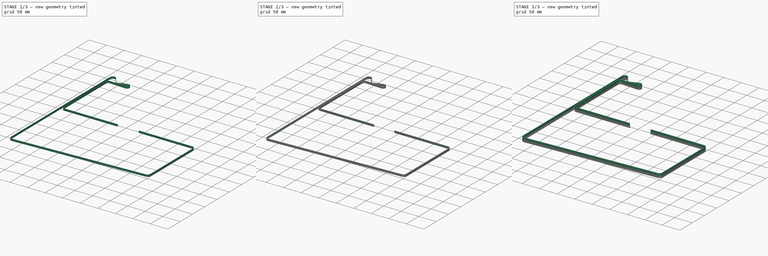
[diagram: build sequence overview — one tinted view per stage of 3, left to right]
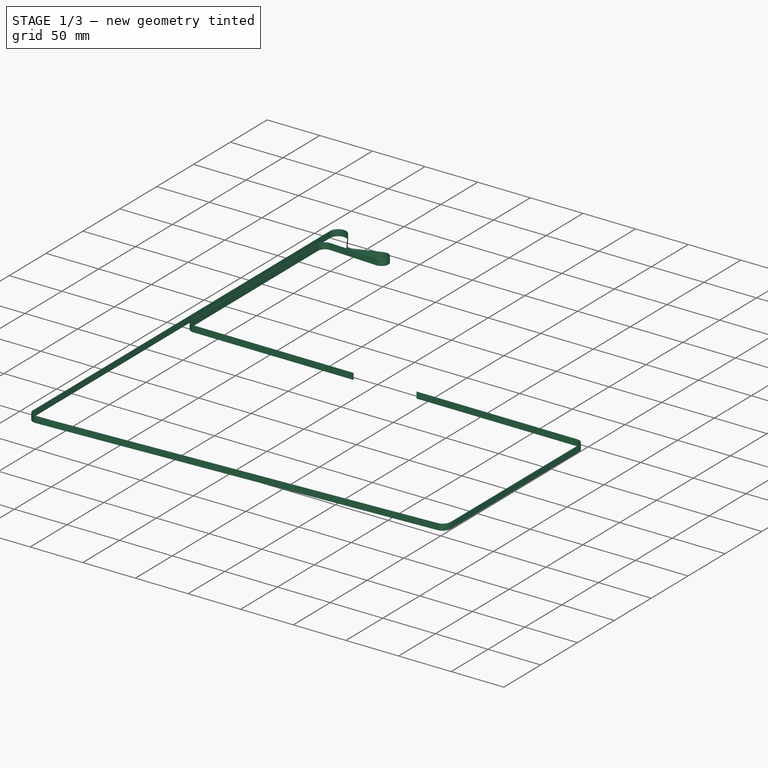
[diagram: stage 1 of 3 — iso view after this stage's code; geometry added in this stage tinted green]
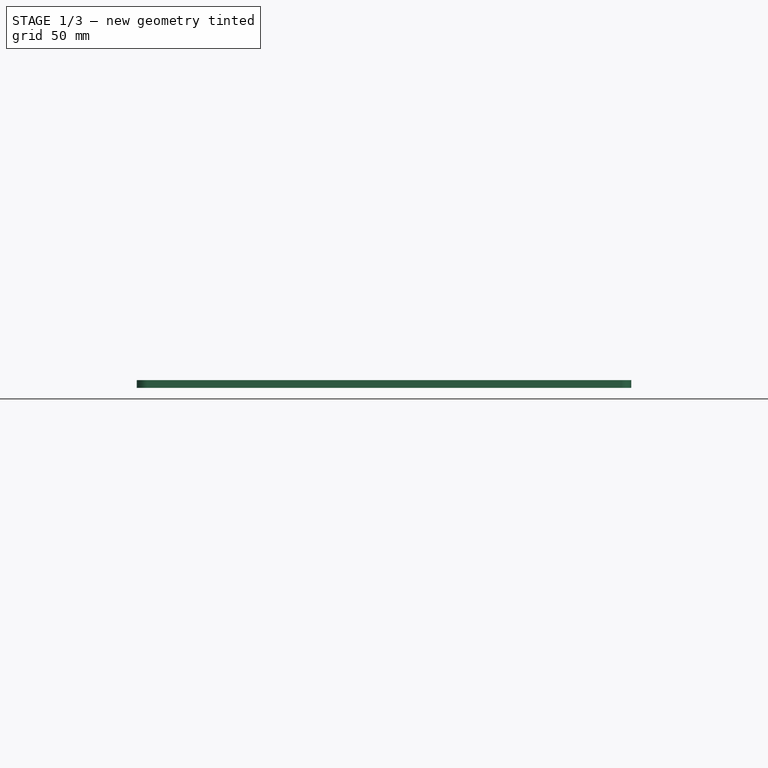
[diagram: stage 1 of 3 — front view after this stage's code; geometry added in this stage tinted green]
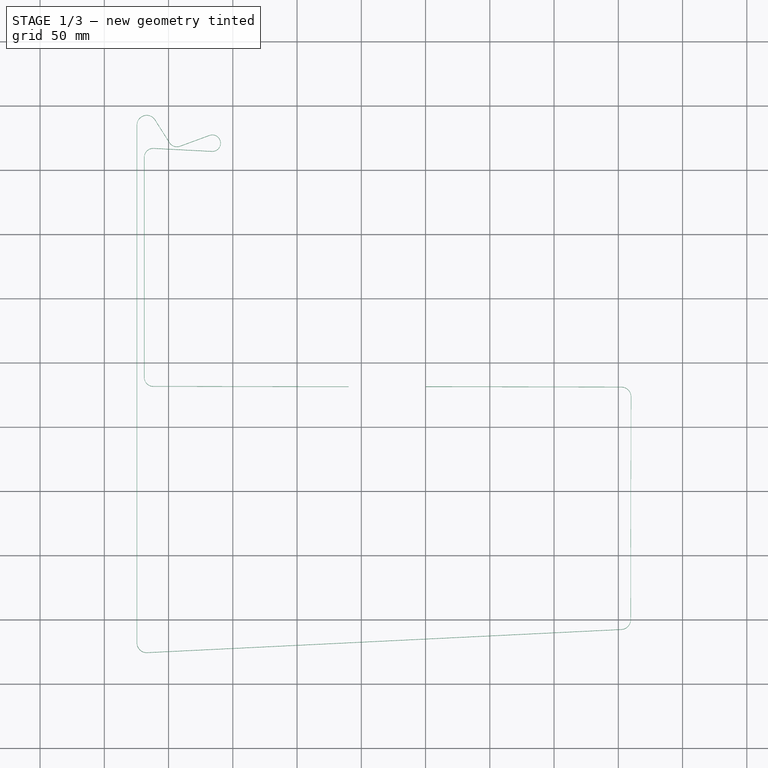
[diagram: stage 1 of 3 — top view after this stage's code; geometry added in this stage tinted green]
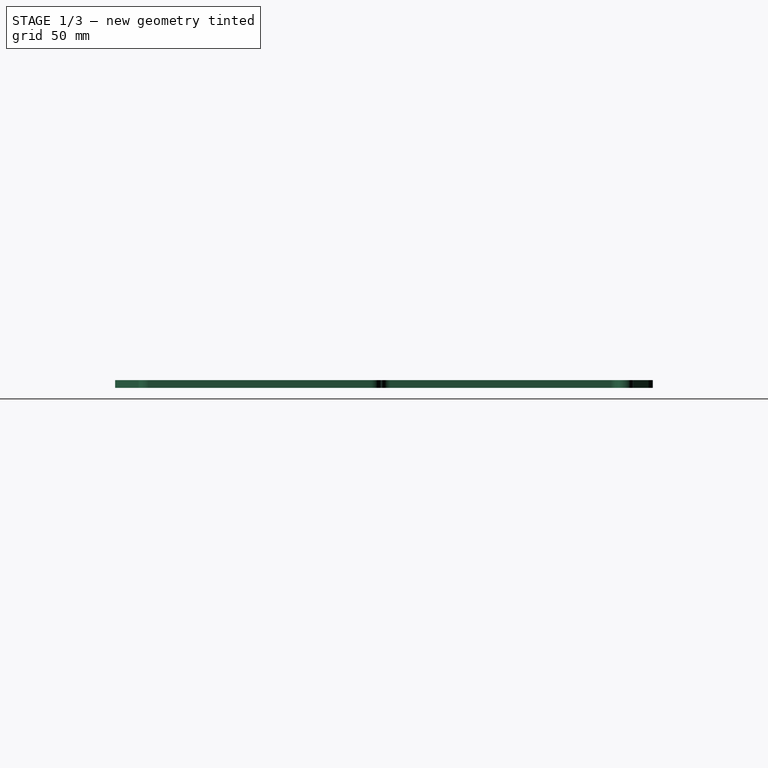
[diagram: stage 1 of 3 — right view after this stage's code; geometry added in this stage tinted green]
FCSTD DOCUMENT  (FreeCAD 0.16R4945 (Git))
Label: GT2-Belt_left
License: All rights reserved
LicenseURL: http://en.wikipedia.org/wiki/All_rights_reserved
objects: Part::Part2DObjectPython×17, Sketcher::SketchObject×5, App::DocumentObjectGroup×3, Part::FeaturePython×2, Part::Sweep×2, PartDesign::Pad×1, Part::Compound×1
note: 29 computed .brp shape members not serialized (recipe doc carries the construction recipe); baked Part::Feature solids carry a one-line shape summary decoded from their .brp

FEATURE [Part::FeaturePython] muxedAssembly  # WARN: FeaturePython — macro-defined, semantics opaque (R4)
  type = muxedAssembly
FEATURE [Part::Sweep] Sweep001
  Frenet = false
  Sections = -> [Sketch004]
  Solid = true
  Spine = -> Sketch [Edge1,Edge2,Edge3,Edge4,Edge5,Edge6,Edge7,Edge8,Edge9,Edge10,Edge11,Edge12,Edge13,Edge14,Edge15,Edge16,Edge17]
  Transition = 1
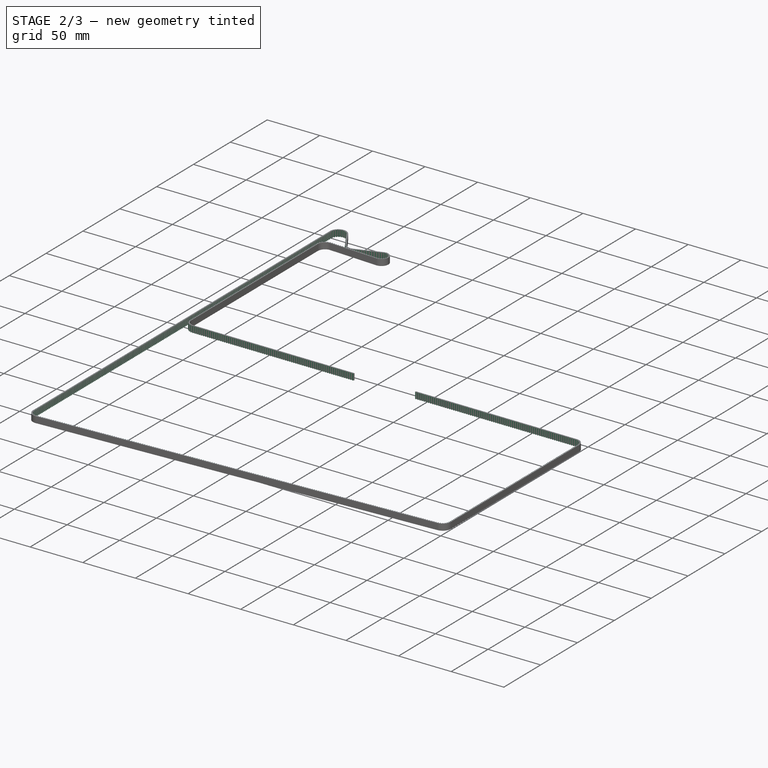
[diagram: stage 2 of 3 — iso view after this stage's code; geometry added in this stage tinted green]
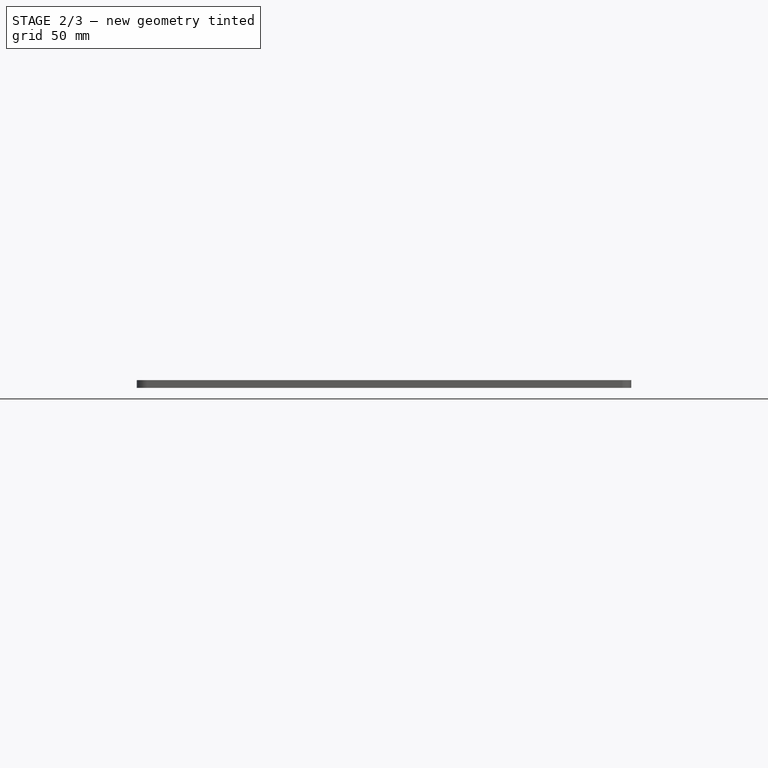
[diagram: stage 2 of 3 — front view after this stage's code; geometry added in this stage tinted green]
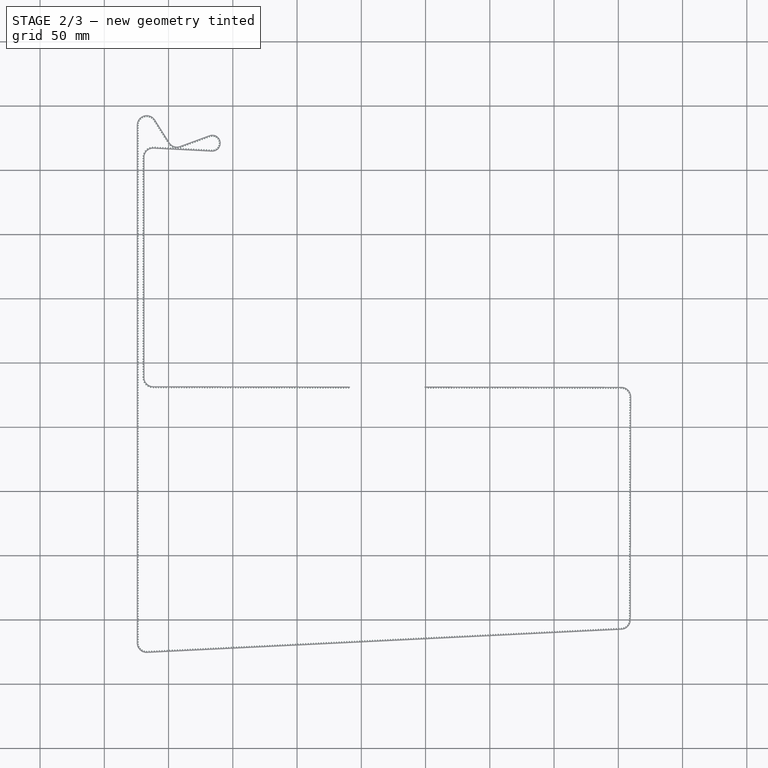
[diagram: stage 2 of 3 — top view after this stage's code; geometry added in this stage tinted green]
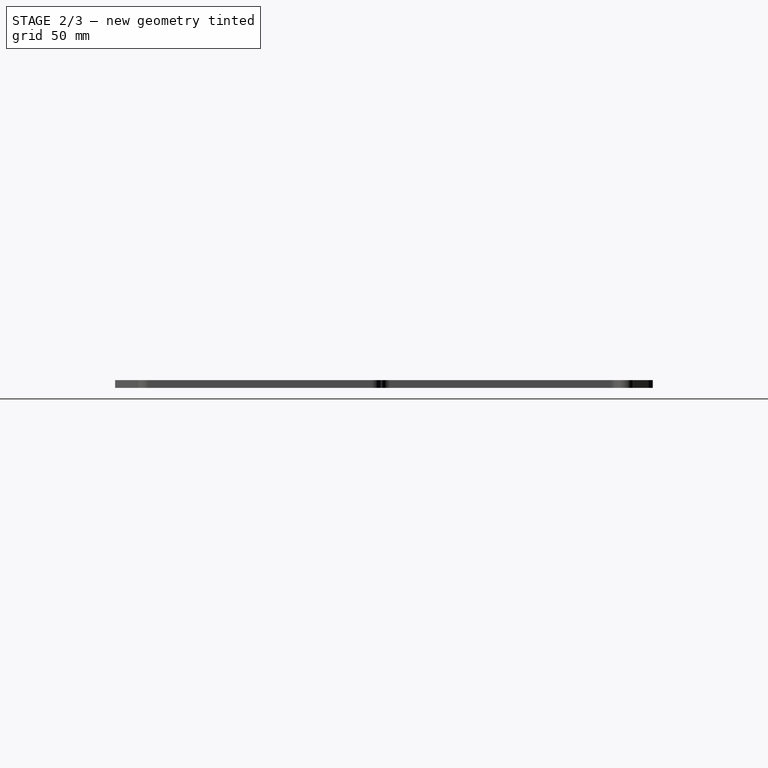
[diagram: stage 2 of 3 — right view after this stage's code; geometry added in this stage tinted green]
FEATURE [Sketcher::SketchObject] Sketch002  label="Timing Belt Master Sketch"
  Placement = pos=(0,0,0) rot=(1,0,0;1.5708rad)
  sketch-geometry (11):
    g0: Circle CenterX=0 CenterY=-0.449 CenterZ=0 NormalX=0 NormalY=0 NormalZ=1 Radius=0.555
    g1: LineSegment [constr] StartX=-1 StartY=-1.004 StartZ=0 EndX=1 EndY=-1.004 EndZ=0
    g2: LineSegment StartX=-1 StartY=-0.254 StartZ=0 EndX=1 EndY=-0.254 EndZ=0
    g3: LineSegment StartX=-1 StartY=0.376 StartZ=0 EndX=1 EndY=0.376 EndZ=0
    g4: LineSegment StartX=-1 StartY=0.376 StartZ=0 EndX=-1 EndY=-1.004 EndZ=0
    g5: LineSegment StartX=1 StartY=0.376 StartZ=0 EndX=1 EndY=-1.004 EndZ=0
    g6: LineSegment [constr] StartX=-1 StartY=-0.449 StartZ=0 EndX=1 EndY=-0.449 EndZ=0
    g7: Circle CenterX=-0.740175 CenterY=-0.404 CenterZ=0 NormalX=0 NormalY=0 NormalZ=1 Radius=0.15
    g8: Circle CenterX=0.740175 CenterY=-0.404 CenterZ=0 NormalX=0 NormalY=0 NormalZ=1 Radius=0.15
    g9: Circle CenterX=-0.4 CenterY=-0.254 CenterZ=0 NormalX=0 NormalY=0 NormalZ=1 Radius=1
    g10: Circle CenterX=0.4 CenterY=-0.254 CenterZ=0 NormalX=0 NormalY=0 NormalZ=1 Radius=1
  constraints (33):
    c: Radius(g0) = 0.555
    c: PointOnObject(g0,g-2)
    c: Horizontal(g1)
    c: Tangent(g1,g0)
    c: DistanceX(g1) = 2
    c: Symmetric(g1,g1,g-2)
    c: Horizontal(g2)
    c: DistanceY(g2,g1) = -0.75
    c: Horizontal(g3)
    c: Equal(g1,g2)
    c: Equal(g2,g3)
    c: Vertical(g4)
    c: Coincident(g4,g1)
    c: Coincident(g4,g3)
    c: PointOnObject(g2,g4)
    c: Coincident(g5,g1)
    c: Coincident(g5,g3)
    c: DistanceY(g3,g1) = -1.38
    c: PointOnObject(g0,g6)
    c: DistanceY(g-1,g2) = -0.254
    c: Horizontal(g6)
    c: PointOnObject(g6,g4)
    c: PointOnObject(g6,g5)
    c: Radius(g7) = 0.15
    c: Equal(g8,g7)
    c: Symmetric(g7,g8,g-2)
    c: Radius(g9) = 1
    c: Equal(g10,g9)
    c: Symmetric(g10,g9,g-2)
    c: DistanceX(g-1,g10) = 0.4
    c: DistanceY(g7,g3) = 0.78
    c: DistanceX(g7,g3) = -0.259825
    c: PointOnObject(g10,g2)
FEATURE [App::DocumentObjectGroup] Group  label="Master Sketch"
  Group = -> [Sketch002]
FEATURE [Part::Part2DObjectPython] Circle  # Draft 2D object (typed FeaturePython)
  FirstAngle = 0
  LastAngle = 0
  MakeFace = true
  Placement = pos=(0,-0.449,0) rot=(0,0,1;0rad)
  Radius = 0.555
FEATURE [Part::Part2DObjectPython] Line  # Draft 2D object (typed FeaturePython)
  ChamferSize = 0
  Closed = false
  End = (1,-0.254,0)
  FilletRadius = 0
  MakeFace = true
  Points = (2) [(-1,-0.254,0),(1,-0.254,0)]
  Start = (-1,-0.254,0)
FEATURE [Part::Part2DObjectPython] DWire  # Draft 2D object (typed FeaturePython)
  ChamferSize = 0
  Closed = false
  End = (1,-1.004,0)
  FilletRadius = 0
  MakeFace = true
  Points = (4) [(-1,-1.004,0),(-1,0.376,0),(1,0.376,0),(1,-1.004,0)]
  Start = (-1,-1.004,0)
FEATURE [Part::Part2DObjectPython] Circle001  # Draft 2D object (typed FeaturePython)
  FirstAngle = 0
  LastAngle = 0
  MakeFace = true
  Placement = pos=(-0.740175,-0.404,0) rot=(0,0,1;0rad)
  Radius = 0.15
FEATURE [Part::Part2DObjectPython] Circle002  # Draft 2D object (typed FeaturePython)
  FirstAngle = 0
  LastAngle = 0
  MakeFace = true
  Placement = pos=(0.740175,-0.404,0) rot=(0,0,1;0rad)
  Radius = 0.15
FEATURE [Part::Part2DObjectPython] Circle003  # Draft 2D object (typed FeaturePython)
  FirstAngle = 0
  LastAngle = 0
  MakeFace = true
  Placement = pos=(-0.4,-0.254,0) rot=(0,0,1;0rad)
  Radius = 1
FEATURE [Part::Part2DObjectPython] Circle004  # Draft 2D object (typed FeaturePython)
  FirstAngle = 0
  LastAngle = 0
  MakeFace = true
  Placement = pos=(0.4,-0.254,0) rot=(0,0,1;0rad)
  Radius = 1
FEATURE [App::DocumentObjectGroup] Group001  label="Draft from Sketch"
  Group = -> [Circle,Line,DWire,Circle001,Circle002,Circle003,Circle004]
FEATURE [Part::Part2DObjectPython] Arc  # Draft 2D object (typed FeaturePython)
  FirstAngle = 7.49472
  LastAngle = 90
  MakeFace = false
  Placement = pos=(-0.740175,-0.404,0) rot=(0,0,1;0rad)
  Radius = 0.15
FEATURE [Part::Part2DObjectPython] Arc001  # Draft 2D object (typed FeaturePython)
  FirstAngle = 90
  LastAngle = 172.505
  MakeFace = false
  Placement = pos=(0.740175,-0.404,0) rot=(0,0,1;0rad)
  Radius = 0.15
FEATURE [Part::Part2DObjectPython] Line001  # Draft 2D object (typed FeaturePython)
  ChamferSize = 0
  Closed = false
  End = (-1,-0.254,0)
  FilletRadius = 0
  MakeFace = false
  Points = (2) [(-0.740175,-0.254,0),(-1,-0.254,0)]
  Start = (-0.740175,-0.254,0)
FEATURE [Part::Part2DObjectPython] Line002  # Draft 2D object (typed FeaturePython)
  ChamferSize = 0
  Closed = false
  End = (1,-0.254,0)
  FilletRadius = 0
  MakeFace = false
  Points = (2) [(0.740175,-0.254,0),(1,-0.254,0)]
  Start = (0.740175,-0.254,0)
FEATURE [Part::Part2DObjectPython] Arc002  # Draft 2D object (typed FeaturePython)
  FirstAngle = -154.011
  LastAngle = -25.9892
  MakeFace = false
  Placement = pos=(0,-0.449,0) rot=(0,0,1;0rad)
  Radius = 0.555
FEATURE [Part::Part2DObjectPython] Arc003  # Draft 2D object (typed FeaturePython)
  FirstAngle = -25.9892
  LastAngle = -7.49472
  MakeFace = false
  Placement = pos=(-0.4,-0.254,0) rot=(0,0,1;0rad)
  Radius = 1
FEATURE [Part::Part2DObjectPython] Arc004  # Draft 2D object (typed FeaturePython)
  FirstAngle = -172.505
  LastAngle = -154.011
  MakeFace = false
  Placement = pos=(0.4,-0.254,0) rot=(0,0,1;0rad)
  Radius = 1
FEATURE [Part::Part2DObjectPython] Line003  # Draft 2D object (typed FeaturePython)
  ChamferSize = 0
  Closed = false
  End = (-1,0.376,0)
  FilletRadius = 0
  MakeFace = false
  Points = (2) [(-1,-0.254,0),(-1,0.376,0)]
  Start = (-1,-0.254,0)
FEATURE [Part::Part2DObjectPython] Line004  # Draft 2D object (typed FeaturePython)
  ChamferSize = 0
  Closed = false
  End = (1,0.376,0)
  FilletRadius = 0
  MakeFace = false
  Points = (2) [(1,-0.254,0),(1,0.376,0)]
  Start = (1,-0.254,0)
FEATURE [Part::Part2DObjectPython] Line005  # Draft 2D object (typed FeaturePython)
  ChamferSize = 0
  Closed = false
  End = (1,0.376,0)
  FilletRadius = 0
  MakeFace = false
  Points = (2) [(-1,0.376,0),(1,0.376,0)]
  Start = (-1,0.376,0)
FEATURE [App::DocumentObjectGroup] Group002  label="Outline from Draft"
  Group = -> [Arc,Arc001,Line001,Line002,Arc002,Arc003,Arc004,Line003,Line004,Line005]
FEATURE [Sketcher::SketchObject] Sketch003  label="Timing Belt sketch from outline"
  Placement = pos=(0,0,0) rot=(1,0,0;1.5708rad)
  sketch-geometry (10):
    g0: ArcOfCircle CenterX=-0.740173 CenterY=-0.403997 CenterZ=0 NormalX=0 NormalY=0 NormalZ=1 Radius=0.149997 StartAngle=0.134719 EndAngle=1.57082
    g1: LineSegment StartX=1 StartY=-0.254 StartZ=0 EndX=1 EndY=0.376 EndZ=0
    g2: ArcOfCircle CenterX=0.740176 CenterY=-0.404 CenterZ=0 NormalX=0 NormalY=0 NormalZ=1 Radius=0.15 StartAngle=1.5708 EndAngle=3.01411
    g3: LineSegment StartX=0.740176 StartY=-0.254 StartZ=0 EndX=1 EndY=-0.254 EndZ=0
    g4: LineSegment StartX=-0.740176 StartY=-0.254 StartZ=0 EndX=-1 EndY=-0.254 EndZ=0
    g5: ArcOfCircle CenterX=0 CenterY=-0.448894 CenterZ=0 NormalX=0 NormalY=0 NormalZ=1 Radius=0.555048 StartAngle=3.59519 EndAngle=5.83002
    g6: ArcOfCircle CenterX=-0.400001 CenterY=-0.254 CenterZ=0 NormalX=0 NormalY=0 NormalZ=1 Radius=1 StartAngle=5.82992 EndAngle=6.15188
    g7: LineSegment StartX=-1 StartY=0.376 StartZ=0 EndX=1 EndY=0.376 EndZ=0
    g8: ArcOfCircle CenterX=0.400001 CenterY=-0.254 CenterZ=0 NormalX=0 NormalY=0 NormalZ=1 Radius=1 StartAngle=3.27181 EndAngle=3.5951
    g9: LineSegment StartX=-1 StartY=-0.254 StartZ=0 EndX=-1 EndY=0.376 EndZ=0
  constraints (34):
    c: Coincident(g7,g9)
    c: Coincident(g1,g7)
    c: Coincident(g4,g9)
    c: Coincident(g0,g4)
    c: Coincident(g0,g8)
    c: Coincident(g5,g8)
    c: Coincident(g5,g6)
    c: Coincident(g2,g6)
    c: Coincident(g2,g3)
    c: Coincident(g1,g3)
    c: PointOnObject(g5,g-2)
    c: DistanceX(g7) = 2
    c: Symmetric(g7,g1,g-2)
    c: Equal(g9,g1)
    c: Equal(g4,g3)
    c: DistanceY(g9) = 0.63
    c: DistanceX(g4) = -0.259824
    c: Vertical(g9)
    c: Horizontal(g4)
    c: Horizontal(g3)
    c: Symmetric(g1,g4,g-2)
    c: DistanceY(g-1,g7) = 0.376
    c: DistanceX(g8) = 0.400001
    c: DistanceY(g8) = -0.254
    c: DistanceX(g6) = -0.400001
    c: DistanceY(g6) = -0.254
    c: DistanceX(g0) = -0.740173
    c: DistanceY(g0) = -0.403997
    c: DistanceX(g2) = 0.740176
    c: DistanceY(g2) = -0.404
    c: Equal(g8,g6)
    c: Radius(g5) = 0.555048
    c: DistanceX(g5) = 0.499025
    c: DistanceY(g5) = -0.691901
FEATURE [PartDesign::Pad] Pad  label="Timing Belt GT2"
  Length = 6
  Length2 = 100
  Placement = pos=(0,0,0) rot=(1,0,0;1.5708rad)
  Sketch = -> Sketch003
  Type = 0
FEATURE [Sketcher::SketchObject] Sketch004  label="Belt-Back"
  Placement = pos=(190.157,-169,5.996) rot=(0.57735,0.57735,0.57735;2.0944rad)
  sketch-geometry (4):
    g0: LineSegment StartX=0.266 StartY=0 StartZ=0 EndX=0.486 EndY=0 EndZ=0
    g1: LineSegment StartX=0.486 StartY=0 StartZ=0 EndX=0.486 EndY=-6 EndZ=0
    g2: LineSegment StartX=0.486 StartY=-6 StartZ=0 EndX=0.266 EndY=-6 EndZ=0
    g3: LineSegment StartX=0.266 StartY=-6 StartZ=0 EndX=0.266 EndY=0 EndZ=0
  constraints (12):
    c: Coincident(g0,g1)
    c: Coincident(g1,g2)
    c: Coincident(g2,g3)
    c: Coincident(g3,g0)
    c: Horizontal(g0)
    c: Horizontal(g2)
    c: Vertical(g1)
    c: Vertical(g3)
    c: Distance(g1) = 6
    c: Distance(g0) = 0.22
    c: DistanceY(g-1,g0) = 0
    c: DistanceX(g-1,g0) = 0.266
FEATURE [Part::FeaturePython] PathArray  # WARN: FeaturePython — macro-defined, semantics opaque (R4)
  Align = true
  Base = -> Pad
  Count = 811
  PathObj = -> Sketch
  Xlate = (0,0,0)
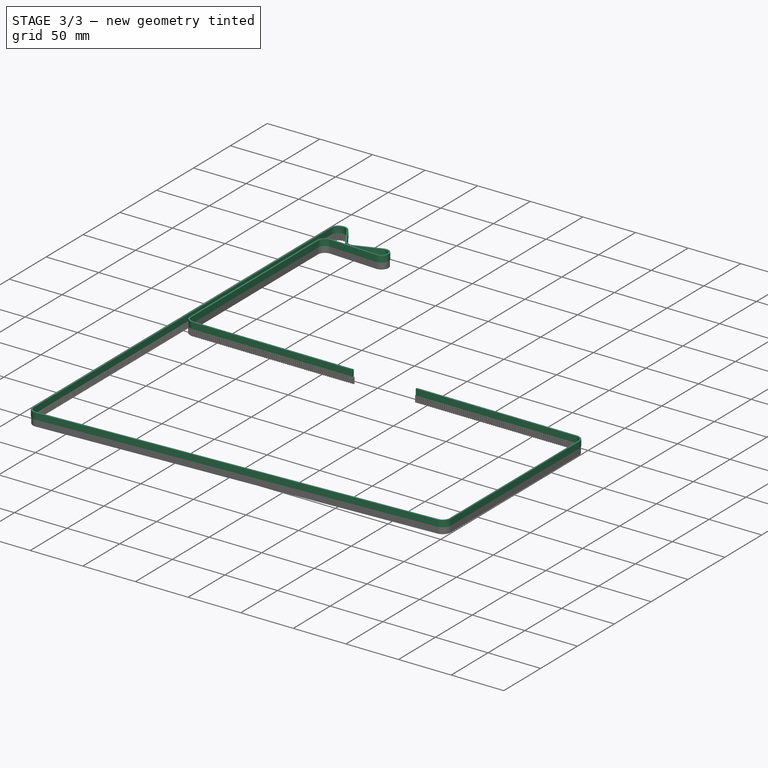
[diagram: stage 3 of 3 — iso view after this stage's code; geometry added in this stage tinted green]
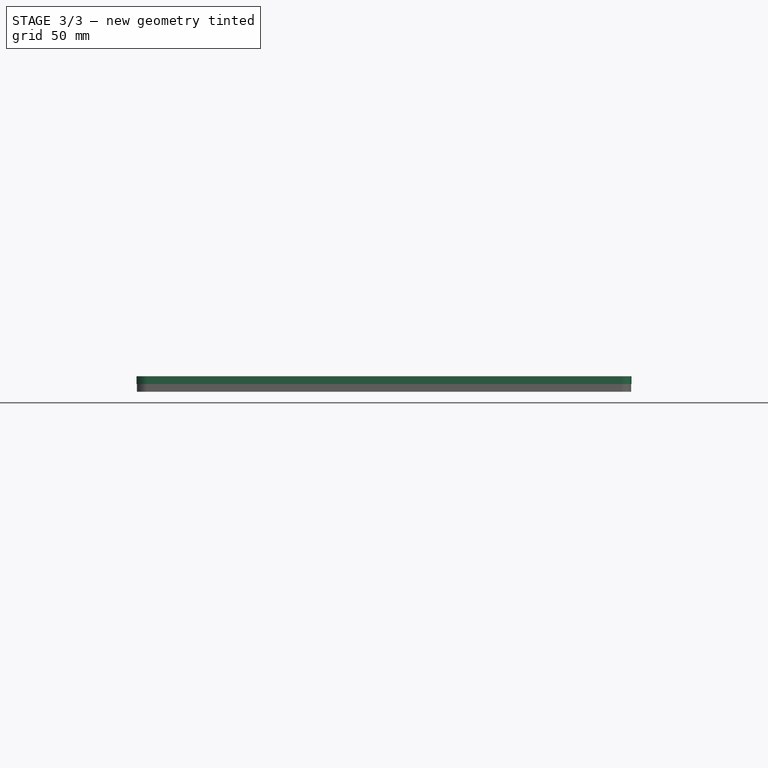
[diagram: stage 3 of 3 — front view after this stage's code; geometry added in this stage tinted green]
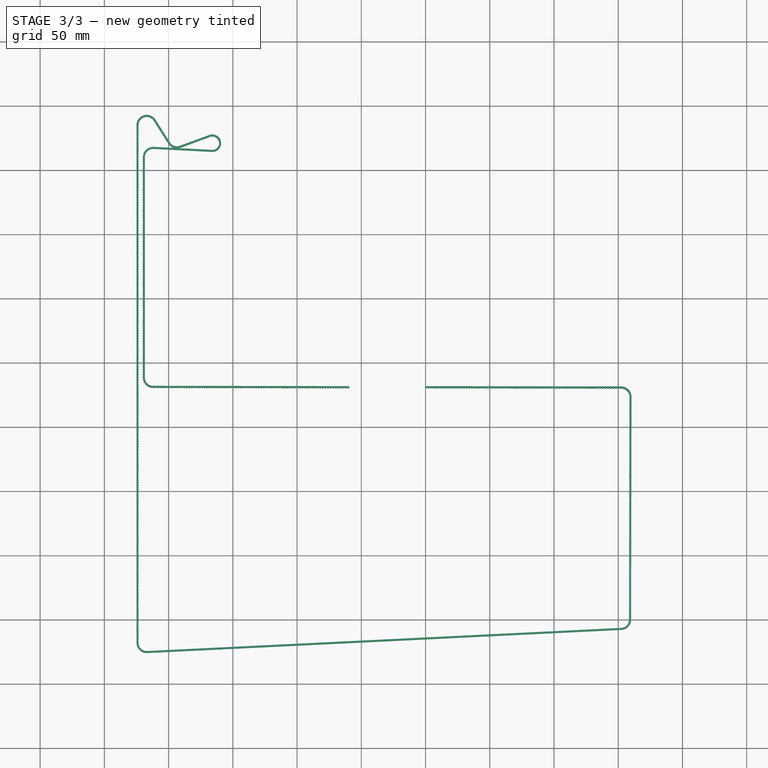
[diagram: stage 3 of 3 — top view after this stage's code; geometry added in this stage tinted green]
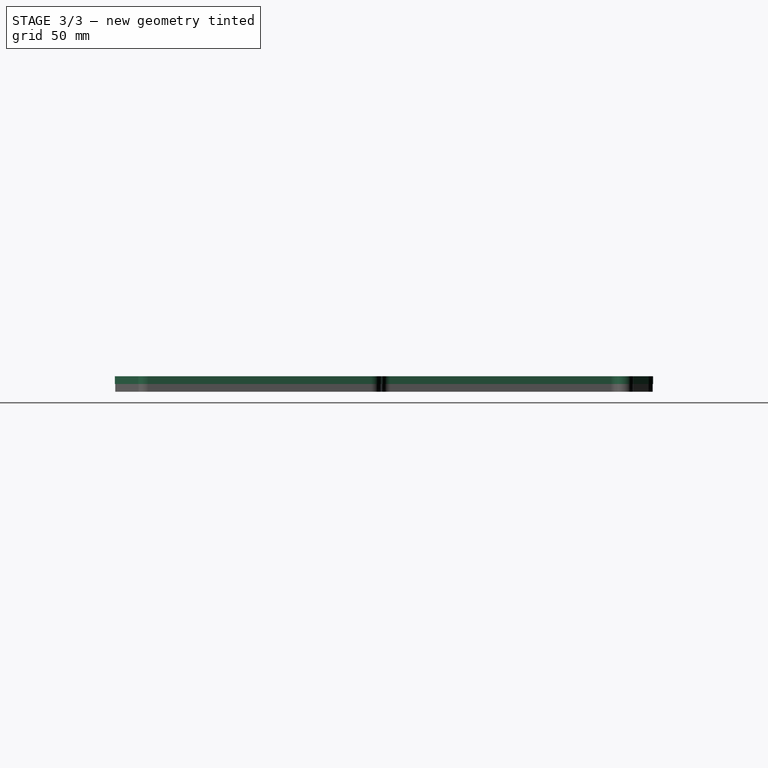
[diagram: stage 3 of 3 — right view after this stage's code; geometry added in this stage tinted green]
FEATURE [Sketcher::SketchObject] Sketch  label="Beltpath"
  ExternalGeometry = -> [muxedAssembly]
  Placement = pos=(0,0,5.996) rot=(0,0,1;0rad)
  Support = -> muxedAssembly [Face97]
  sketch-geometry (30):
    g0: GeomPoint [constr] X=83.9611 Y=26.2437 Z=0
    g1: LineSegment [constr] StartX=83.3568 StartY=26.7163 StartZ=0 EndX=84.5491 EndY=26.7363 EndZ=0
    g2: LineSegment [constr] StartX=83.9611 StartY=26.2437 StartZ=0 EndX=83.953 EndY=26.7263 EndZ=0
    g3: Circle [constr] CenterX=84.05 CenterY=20.95 CenterZ=0 NormalX=0 NormalY=0 NormalZ=1 Radius=5.29449
    g4: LineSegment [constr] StartX=190.157 StartY=-169 StartZ=0 EndX=250.157 EndY=-169 EndZ=0
    g5: LineSegment StartX=190.157 StartY=-169 StartZ=0 EndX=37.9881 EndY=-168.75 EndZ=0
    g6: ArcOfCircle CenterX=38 CenterY=-161.5 CenterZ=0 NormalX=0 NormalY=0 NormalZ=1 Radius=7.25 StartAngle=3.14159 EndAngle=4.71075
    g7: ArcOfCircle CenterX=38 CenterY=10 CenterZ=0 NormalX=0 NormalY=0 NormalZ=1 Radius=7.25 StartAngle=1.51955 EndAngle=3.14159
    g8: LineSegment StartX=38.3714 StartY=17.2405 StartZ=0 EndX=83.7404 EndY=14.9134 EndZ=0
    g9: ArcOfCircle CenterX=84.05 CenterY=20.95 CenterZ=0 NormalX=0 NormalY=0 NormalZ=1 Radius=6.04449 StartAngle=4.66114 EndAngle=8.20575
    g10: LineSegment StartX=81.9673 StartY=26.6244 StartZ=0 EndX=58.998 EndY=18.1939 EndZ=0
    g11: ArcOfCircle CenterX=56.5 CenterY=25 CenterZ=0 NormalX=0 NormalY=0 NormalZ=1 Radius=7.25 StartAngle=3.70629 EndAngle=5.06415
    g12: LineSegment StartX=50.3756 StartY=21.1201 StartZ=0 EndX=39.1244 EndY=38.8799 EndZ=0
    g13: ArcOfCircle CenterX=33 CenterY=35 CenterZ=0 NormalX=0 NormalY=0 NormalZ=1 Radius=7.25 StartAngle=0.564699 EndAngle=3.14159
    g14: LineSegment StartX=25.75 StartY=35 StartZ=0 EndX=25.75 EndY=-368 EndZ=0
    g15: ArcOfCircle CenterX=33 CenterY=-368 CenterZ=0 NormalX=0 NormalY=0 NormalZ=1 Radius=7.25 StartAngle=3.14159 EndAngle=4.76113
    g16: LineSegment StartX=33.3532 StartY=-375.241 StartZ=0 EndX=402.353 EndY=-357.241 EndZ=0
    g17: ArcOfCircle CenterX=402 CenterY=-350 CenterZ=0 NormalX=0 NormalY=0 NormalZ=1 Radius=7.25 StartAngle=4.76113 EndAngle=6.28137
    g18: LineSegment StartX=409.25 StartY=-350.013 StartZ=0 EndX=409.565 EndY=-176.513 EndZ=0
    g19: ArcOfCircle CenterX=402.315 CenterY=-176.5 CenterZ=0 NormalX=0 NormalY=0 NormalZ=1 Radius=7.25 StartAngle=6.28137 EndAngle=7.85234
    g20: LineSegment StartX=402.327 StartY=-169.25 StartZ=0 EndX=250.157 EndY=-169 EndZ=0
    g21: LineSegment StartX=30.75 StartY=-161.5 StartZ=0 EndX=30.75 EndY=10 EndZ=0
    g22: Circle [constr] CenterX=38 CenterY=-161.5 CenterZ=0 NormalX=0 NormalY=0 NormalZ=1 Radius=7.25
    g23: Circle [constr] CenterX=38 CenterY=10 CenterZ=0 NormalX=0 NormalY=0 NormalZ=1 Radius=7.25
    g24: Circle [constr] CenterX=33 CenterY=35 CenterZ=0 NormalX=0 NormalY=0 NormalZ=1 Radius=7.25
    g25: Circle [constr] CenterX=56.5 CenterY=25 CenterZ=0 NormalX=0 NormalY=0 NormalZ=1 Radius=7.25
    g26: Circle [constr] CenterX=33 CenterY=-368 CenterZ=0 NormalX=0 NormalY=0 NormalZ=1 Radius=7.25
    g27: Circle [constr] CenterX=402 CenterY=-350 CenterZ=0 NormalX=0 NormalY=0 NormalZ=1 Radius=7.25
    g28: Circle [constr] CenterX=402.315 CenterY=-176.5 CenterZ=0 NormalX=0 NormalY=0 NormalZ=1 Radius=7.25
    g29: Circle [constr] CenterX=84.05 CenterY=20.95 CenterZ=0 NormalX=0 NormalY=0 NormalZ=1 Radius=6.04449
  constraints (75):
    c: PointOnObject(g0,g-3)
    c: Coincident(g1,g-3)
    c: Coincident(g1,g-3)
    c: Perpendicular(g1,g2)
    c: Coincident(g3,g-4)
    c: PointOnObject(g0,g3)
    c: PointOnObject(g4,g-6)
    c: PointOnObject(g4,g-7)
    c: Symmetric(g-6,g-6,g4)
    c: Coincident(g4,g5)
    c: Tangent(g5,g6) = 1.5708
    c: Coincident(g7,g8)
    c: Tangent(g8,g9) = -1.5708
    c: Coincident(g9,g10)
    c: Tangent(g10,g11) = 1.5708
    c: Coincident(g11,g12)
    c: Tangent(g12,g13) = -1.5708
    c: Coincident(g13,g14)
    c: Tangent(g14,g15) = -1.5708
    c: Coincident(g15,g16)
    c: Tangent(g16,g17) = -1.5708
    c: Coincident(g17,g18)
    c: Tangent(g18,g19) = -1.5708
    c: Coincident(g19,g20)
    c: Coincident(g20,g4)
    c: Coincident(g11,g-5)
    c: Coincident(g9,g3)
    c: Coincident(g2,g0)
    c: PointOnObject(g2,g1)
    c: Symmetric(g1,g1,g2)
    c: Tangent(g7,g8) = 1.5708
    c: Tangent(g9,g10) = -1.5708
    c: Tangent(g11,g12) = 1.5708
    c: Tangent(g13,g14) = -1.5708
    c: Tangent(g15,g16) = -1.5708
    c: Tangent(g17,g18) = -1.5708
    c: Tangent(g19,g20) = -1.5708
    c: Coincident(g21,g6)
    c: Coincident(g21,g7)
    c: Tangent(g7,g21) = 1.5708
    c: Tangent(g6,g21) = 1.5708
    c: Radius(g22) = 7.25
    c: PointOnObject(g5,g22)
    c: Coincident(g6,g22)
    c: Coincident(g23,g7)
    c: Coincident(g24,g13)
    c: Coincident(g25,g11)
    c: PointOnObject(g7,g23)
    c: Coincident(g26,g15)
    c: Coincident(g27,g17)
    c: Equal(g22,g27)
    c: Equal(g27,g26)
    c: Equal(g26,g28)
    c: Equal(g28,g24)
    c: Equal(g24,g23)
    c: Equal(g23,g25)
    c: Coincident(g29,g3)
    c: Radius(g29) = 6.04449
    c: PointOnObject(g8,g29)
    c: Tangent(g10,g25) = 1.5708
    c: PointOnObject(g12,g24)
    c: PointOnObject(g14,g26)
    c: PointOnObject(g16,g27)
    c: PointOnObject(g18,g28)
    c: Coincident(g19,g28)
    c: DistanceY(g-8,g13) = 0
    c: DistanceX(g-8,g13) = 3
    c: DistanceY(g-9,g7) = 0
    c: DistanceX(g-9,g7) = 3
    c: DistanceY(g-11,g15) = 0
    c: DistanceX(g-11,g15) = 3
    c: DistanceY(g-12,g17) = 0
    c: DistanceX(g17,g-12) = 3
    c: Coincident(g-10,g6)
    c: Coincident(g19,g-13)
FEATURE [Sketcher::SketchObject] Sketch001
  Placement = pos=(190.157,0,0) rot=(0.57735,-0.57735,-0.57735;2.0944rad)
  Support = -> muxedAssembly [Face736]
  sketch-geometry (4):
    g0: LineSegment StartX=168.25 StartY=6.07075 StartZ=0 EndX=169.75 EndY=6.07075 EndZ=0
    g1: LineSegment StartX=169.75 StartY=6.07075 StartZ=0 EndX=169.75 EndY=12.0708 EndZ=0
    g2: LineSegment StartX=169.75 StartY=12.0708 StartZ=0 EndX=168.25 EndY=12.0708 EndZ=0
    g3: LineSegment StartX=168.25 StartY=12.0708 StartZ=0 EndX=168.25 EndY=6.07075 EndZ=0
  constraints (10):
    c: Coincident(g0,g1)
    c: Coincident(g1,g2)
    c: Coincident(g2,g3)
    c: Coincident(g3,g0)
    c: Horizontal(g0)
    c: Horizontal(g2)
    c: Vertical(g1)
    c: Vertical(g3)
    c: Distance(g2) = 1.5
    c: Distance(g1) = 6
FEATURE [Part::Sweep] Sweep  label="Sweep (GT-Belt simple)"
  Frenet = false
  Sections = -> [Sketch001]
  Solid = true
  Spine = -> Sketch [Edge1,Edge2,Edge3,Edge4,Edge5,Edge6,Edge7,Edge8,Edge9,Edge10,Edge11,Edge12,Edge13,Edge14,Edge15,Edge16,Edge17]
  Transition = 1
FEATURE [Part::Compound] Compound  label="GT2-Belt_left"
  Links = -> [PathArray,Sweep001]
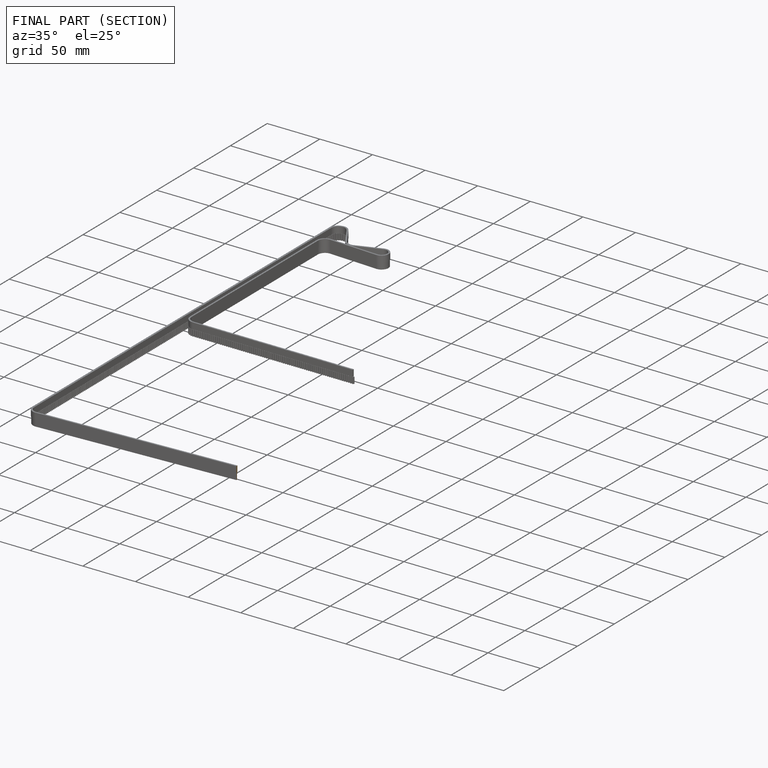
[diagram: finished part — half-section view (interior)]
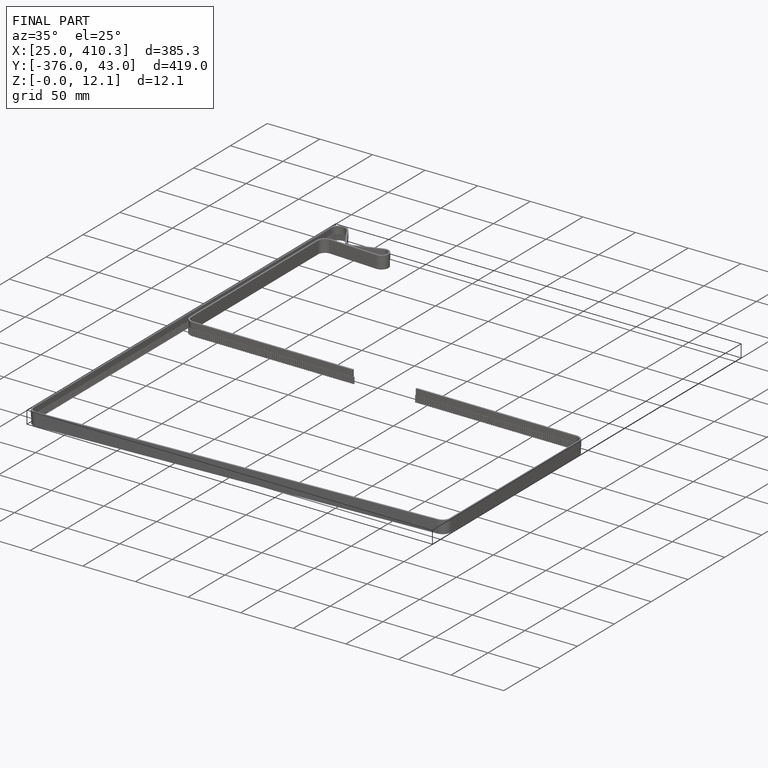
[diagram: finished part — iso view with bounding-box wireframe]
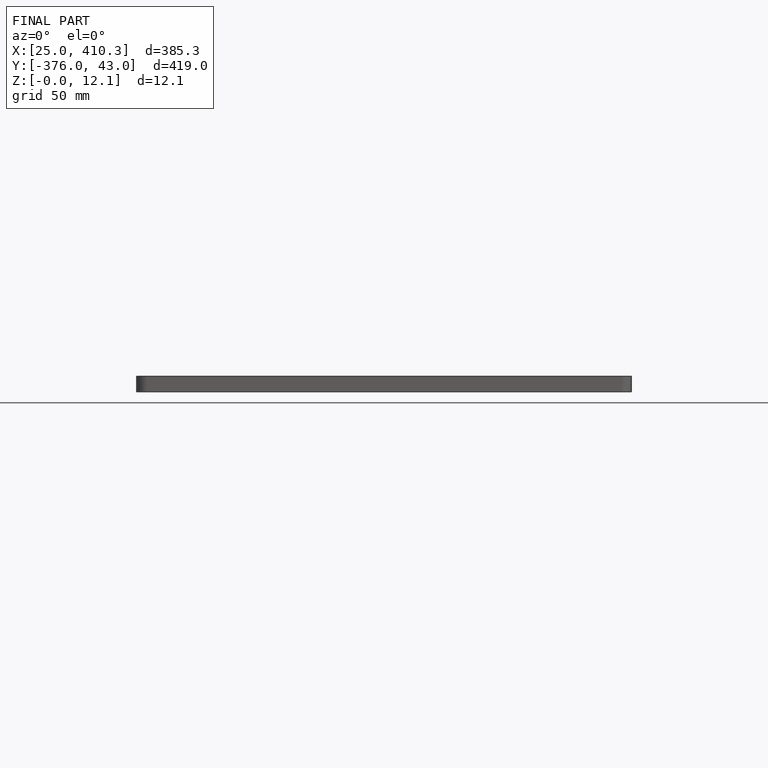
[diagram: finished part — front view with bounding-box wireframe]
